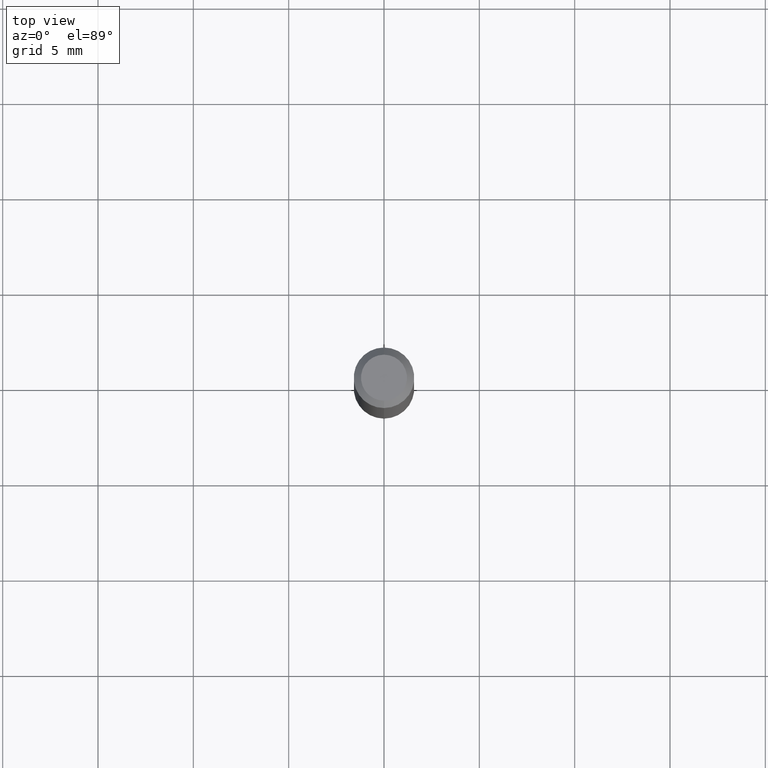
[diagram: clean part render]
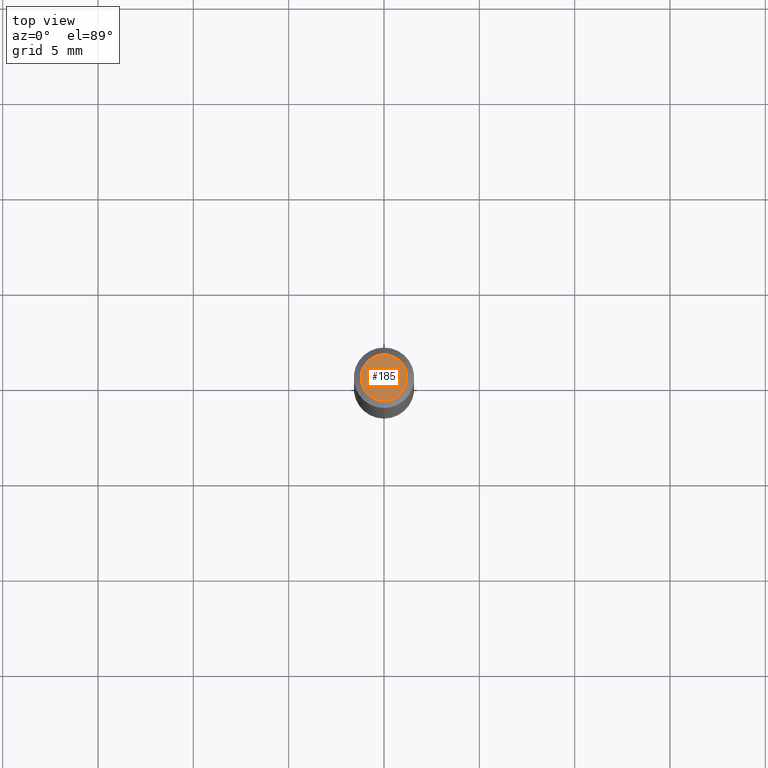
[diagram: same view with one face highlighted and labeled with its STEP entity id]
A machine part, top view. The second image highlights one B-rep face of the part: STEP entity #185.
In plain terms, the highlighted planar face has unit normal (0, -0, -1).
Its self-contained STEP definition (entity closure, byte-faithful):
#28 = EDGE_CURVE ( 'NONE', #83, #463, #338, .T. ) ;
#38 = CARTESIAN_POINT ( 'NONE',  ( 2.166964952502150357E-46, -3.093822512827693468E-32, -8.861101640401174078E-18 ) ) ;
#83 = VERTEX_POINT ( 'NONE', #173 ) ;
#88 = DIRECTION ( 'NONE',  ( 2.445480303060877408E-29, -3.491464874662722568E-15, -1.000000000000000000 ) ) ;
#89 = DIRECTION ( 'NONE',  ( -2.445480303060877688E-29, 3.491464874662722963E-15, 1.000000000000000000 ) ) ;
#119 = CARTESIAN_POINT ( 'NONE',  ( 3.840629472727447874E-16, 0.04749999999999999362, -1.747056831868805136E-16 ) ) ;
#140 = EDGE_LOOP ( 'NONE', ( #161, #436 ) ) ;
#161 = ORIENTED_EDGE ( 'NONE', *, *, #470, .T. ) ;
#173 = CARTESIAN_POINT ( 'NONE',  ( -3.773273898774340269E-16, -0.04749999999999999362, 1.569834799060781747E-16 ) ) ;
#185 = ADVANCED_FACE ( 'NONE', ( #439 ), #443, .F. ) ;
#201 = CIRCLE ( 'NONE', #331, 0.04749999999999999362 ) ;
#208 = DIRECTION ( 'NONE',  ( 6.982962677686265922E-15, 1.000000000000000000, -3.491464874662722568E-15 ) ) ;
#237 = AXIS2_PLACEMENT_3D ( 'NONE', #249, #88, #208 ) ;
#249 = CARTESIAN_POINT ( 'NONE',  ( 3.316907271900976096E-16, 0.04749999999999999362, -1.702751323666799104E-16 ) ) ;
#273 = DIRECTION ( 'NONE',  ( -6.982962677686266711E-15, -1.000000000000000000, 3.491464874662723357E-15 ) ) ;
#281 = DIRECTION ( 'NONE',  ( -2.445480303060877688E-29, 3.491464874662722963E-15, 1.000000000000000000 ) ) ;
#295 = AXIS2_PLACEMENT_3D ( 'NONE', #512, #281, #325 ) ;
#325 = DIRECTION ( 'NONE',  ( -6.982962677686266711E-15, -1.000000000000000000, 3.491464874662723357E-15 ) ) ;
#331 = AXIS2_PLACEMENT_3D ( 'NONE', #38, #89, #273 ) ;
#338 = CIRCLE ( 'NONE', #295, 0.04749999999999999362 ) ;
#436 = ORIENTED_EDGE ( 'NONE', *, *, #28, .T. ) ;
#439 = FACE_OUTER_BOUND ( 'NONE', #140, .T. ) ;
#443 = PLANE ( 'NONE',  #237 ) ;
#463 = VERTEX_POINT ( 'NONE', #119 ) ;
#470 = EDGE_CURVE ( 'NONE', #463, #83, #201, .T. ) ;
#512 = CARTESIAN_POINT ( 'NONE',  ( 2.166964952502150357E-46, -3.093822512827693468E-32, -8.861101640401174078E-18 ) ) ;